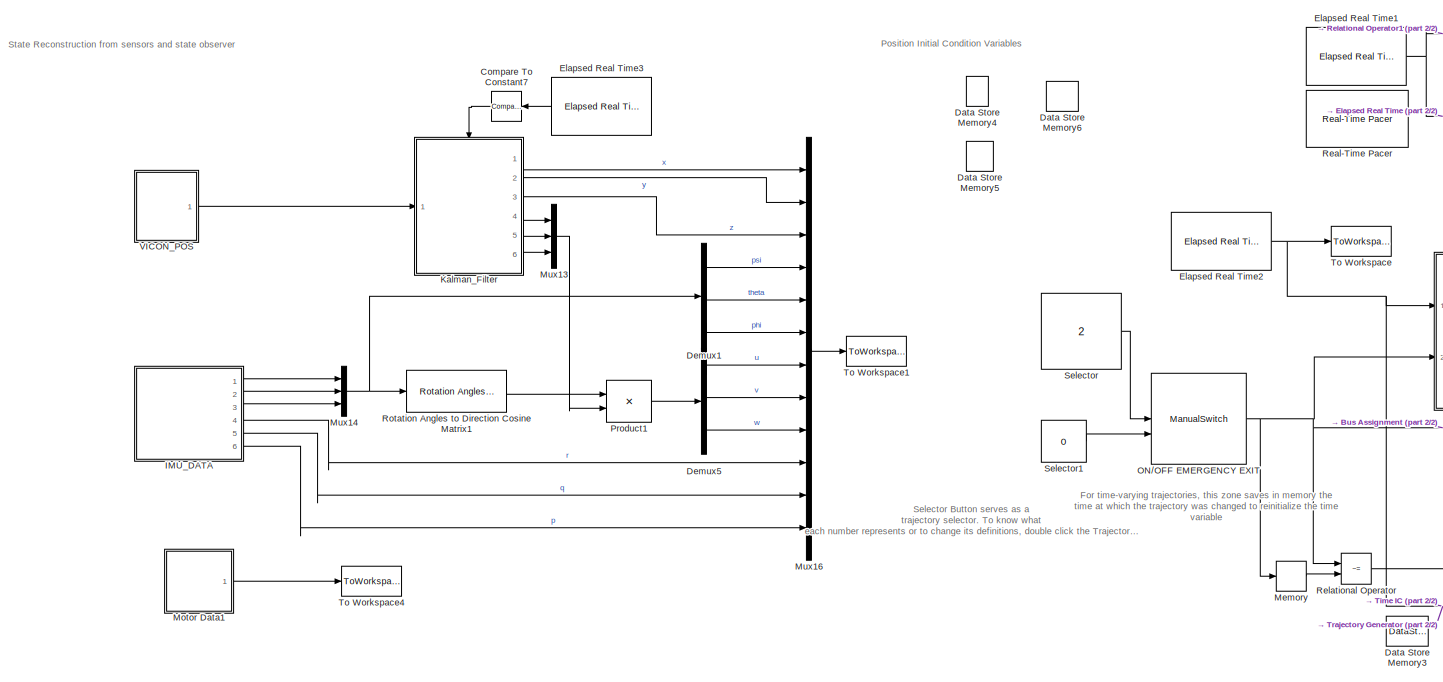
[diagram: root canvas - part 1/2, center side, full height]
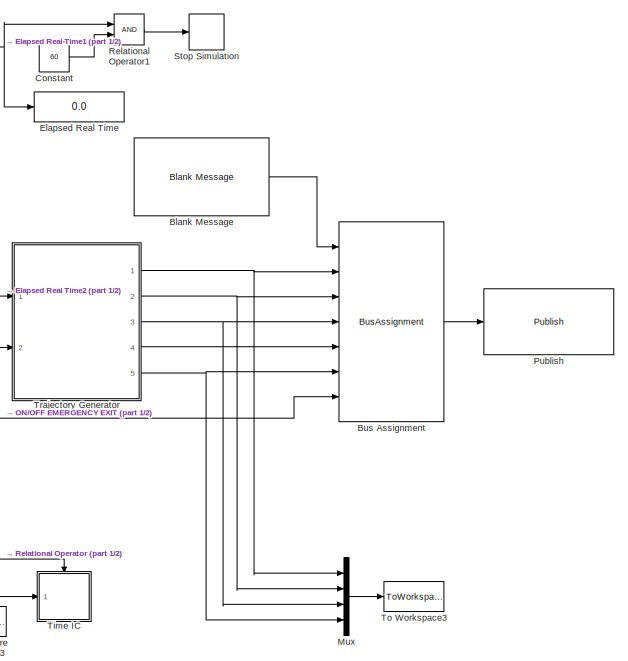
[diagram: root canvas - part 2/2, right side, full height]
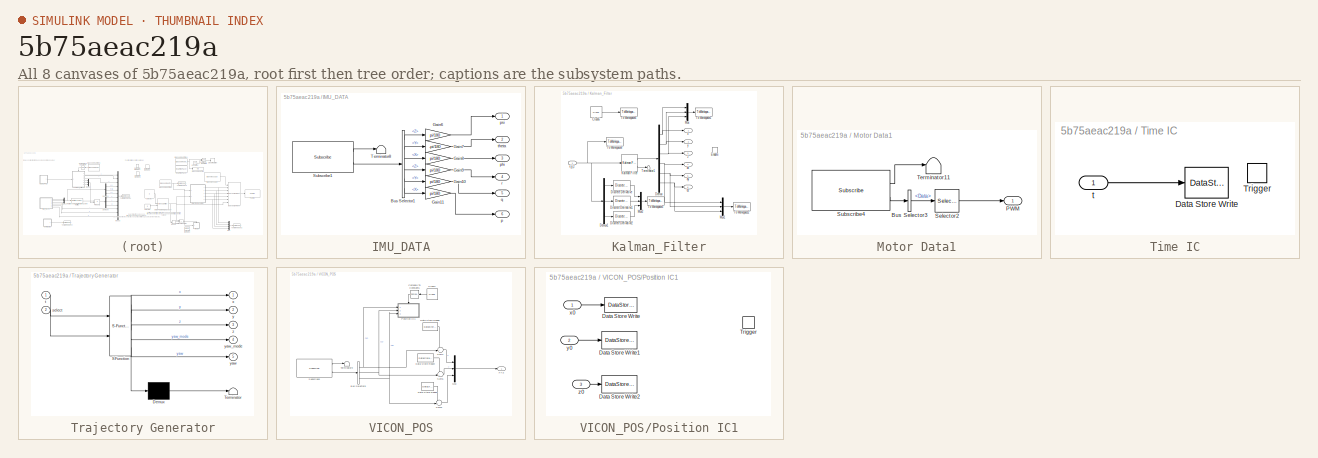
[diagram: thumbnail index - all 8 canvases of the model, root first then tree order]
MODEL slx_5b75aeac219a
KIND model
CONFIG AbsTol = auto
CONFIG FixedStep = Ts
CONFIG MaxStep = auto
CONFIG MinStep = auto
CONFIG RelTol = 1e-3
CONFIG SampleTimeConstraint = Unconstrained
CONFIG Solver = VariableStepAuto
CONFIG SolverMode = Auto
CONFIG SolverName = VariableStepAuto
CONFIG StartTime = 0.0
CONFIG StopTime = 60+1
BLOCK [Reference] Blank Message  REF=robotlib/Blank Message
  Ports = [0, 1]
  SourceBlock = robotlib/Blank Message
  SourceLibraryInfo = This block requires Robotics System Toolbox
  SourceType = ROS Blank Message
BLOCK [BusAssignment] Bus Assignment
  AssignedSignals = Linear.X,Linear.Y,Linear.Z,Angular.Y,Angular.Z,Angular.X
  Ports = [7, 1]
BLOCK [Reference] Compare To Constant7  REF=simulink/Logic and Bit
Operations/Compare
To Constant
  Ports = [1, 1]
  SourceBlock = simulink/Logic and Bit\nOperations/Compare\nTo Constant
  SourceType = Compare To Constant
BLOCK [Constant] Constant
  Value = 60
BLOCK [DataStoreMemory] Data Store Memory3
  DataStoreName = t0
  OutDataTypeStr = double
  ReadBeforeWriteMsg = warning
  SignalType = real
  WriteAfterReadMsg = warning
  WriteAfterWriteMsg = warning
BLOCK [DataStoreMemory] Data Store Memory4
  DataStoreName = x0
  OutDataTypeStr = double
  ReadBeforeWriteMsg = warning
  SignalType = real
  WriteAfterReadMsg = warning
  WriteAfterWriteMsg = warning
BLOCK [DataStoreMemory] Data Store Memory5
  DataStoreName = y0
  OutDataTypeStr = double
  ReadBeforeWriteMsg = warning
  SignalType = real
  WriteAfterReadMsg = warning
  WriteAfterWriteMsg = warning
BLOCK [DataStoreMemory] Data Store Memory6
  DataStoreName = z0
  OutDataTypeStr = double
  ReadBeforeWriteMsg = warning
  SignalType = real
  WriteAfterReadMsg = warning
  WriteAfterWriteMsg = warning
BLOCK [Demux] Demux1
  DisplayOption = bar
  Outputs = 3
  Ports = [1, 3]
BLOCK [Demux] Demux5
  DisplayOption = bar
  Outputs = 3
  Ports = [1, 3]
BLOCK [Display] Elapsed Real Time
  Decimation = 2
  Ports = [1]
BLOCK [Reference] Elapsed Real Time1  REF=realtime_pacer_lib/Elapsed Real Time
  Ports = [0, 1]
  SourceBlock = realtime_pacer_lib/Elapsed Real Time
  SourceType = RealTime_Elapsed
BLOCK [Reference] Elapsed Real Time2  REF=realtime_pacer_lib/Elapsed Real Time
  Ports = [0, 1]
  SourceBlock = realtime_pacer_lib/Elapsed Real Time
  SourceType = RealTime_Elapsed
BLOCK [Reference] Elapsed Real Time3  REF=realtime_pacer_lib/Elapsed Real Time
  Ports = [0, 1]
  SourceBlock = realtime_pacer_lib/Elapsed Real Time
  SourceType = RealTime_Elapsed
BLOCK [SubSystem] IMU_DATA
  Ports = [0, 6]
  RequestExecContextInheritance = off
  Variant = off
BLOCK [BusSelector] IMU_DATA/Bus Selector1
  OutputSignals = AngularVelocity.Z,AngularVelocity.Y,AngularVelocity.X,LinearAcceleration.Z,LinearAcceleration.Y,LinearAcceleration.X
  Ports = [1, 6]
BLOCK [Gain] IMU_DATA/Gain10
  Gain = pi/180
  OutDataTypeStr = Inherit: Inherit via internal rule
  ParamDataTypeStr = Inherit: Inherit via internal rule
  SaturateOnIntegerOverflow = off
BLOCK [Gain] IMU_DATA/Gain11
  Gain = pi/180
  OutDataTypeStr = Inherit: Inherit via internal rule
  ParamDataTypeStr = Inherit: Inherit via internal rule
  SaturateOnIntegerOverflow = off
BLOCK [Gain] IMU_DATA/Gain6
  Gain = pi/180
  OutDataTypeStr = Inherit: Inherit via internal rule
  ParamDataTypeStr = Inherit: Inherit via internal rule
  SaturateOnIntegerOverflow = off
BLOCK [Gain] IMU_DATA/Gain7
  Gain = -pi/180
  OutDataTypeStr = Inherit: Inherit via internal rule
  ParamDataTypeStr = Inherit: Inherit via internal rule
  SaturateOnIntegerOverflow = off
BLOCK [Gain] IMU_DATA/Gain8
  Gain = pi/180
  OutDataTypeStr = Inherit: Inherit via internal rule
  ParamDataTypeStr = Inherit: Inherit via internal rule
  SaturateOnIntegerOverflow = off
BLOCK [Gain] IMU_DATA/Gain9
  Gain = pi/180
  OutDataTypeStr = Inherit: Inherit via internal rule
  ParamDataTypeStr = Inherit: Inherit via internal rule
  SaturateOnIntegerOverflow = off
BLOCK [Reference] IMU_DATA/Subscribe1  REF=robotlib/Subscribe
  Ports = [0, 2]
  SourceBlock = robotlib/Subscribe
  SourceLibraryInfo = This block requires Robotics System Toolbox
  SourceType = ROS Subscribe
BLOCK [Terminator] IMU_DATA/Terminator8
BLOCK [Outport] IMU_DATA/p
  IconDisplay = Port number
  Port = 6
BLOCK [Outport] IMU_DATA/phi
  IconDisplay = Port number
  Port = 3
BLOCK [Outport] IMU_DATA/psi
  IconDisplay = Port number
BLOCK [Outport] IMU_DATA/q
  IconDisplay = Port number
  Port = 5
BLOCK [Outport] IMU_DATA/r
  IconDisplay = Port number
  Port = 4
BLOCK [Outport] IMU_DATA/theta
  IconDisplay = Port number
  Port = 2
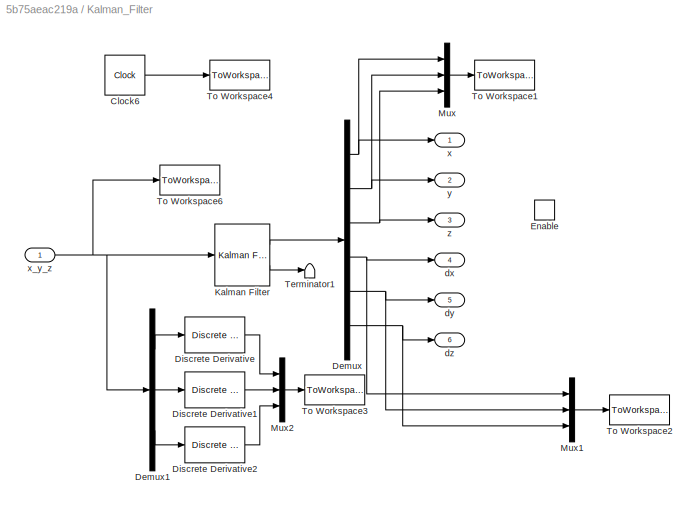
BLOCK [SubSystem] Kalman_Filter
  Ports = [1, 6, 1]
  RequestExecContextInheritance = off
  Variant = off
BLOCK [Clock] Kalman_Filter/Clock6
BLOCK [Demux] Kalman_Filter/Demux
  DisplayOption = bar
  Outputs = 6
  Ports = [1, 6]
BLOCK [Demux] Kalman_Filter/Demux1
  DisplayOption = bar
  Outputs = 3
  Ports = [1, 3]
BLOCK [Reference] Kalman_Filter/Discrete Derivative  REF=simulink/Discrete/Discrete Derivative
  Ports = [1, 1]
  SourceBlock = simulink/Discrete/Discrete Derivative
  SourceType = Discrete Derivative
BLOCK [Reference] Kalman_Filter/Discrete Derivative1  REF=simulink/Discrete/Discrete Derivative
  Ports = [1, 1]
  SourceBlock = simulink/Discrete/Discrete Derivative
  SourceType = Discrete Derivative
BLOCK [Reference] Kalman_Filter/Discrete Derivative2  REF=simulink/Discrete/Discrete Derivative
  Ports = [1, 1]
  SourceBlock = simulink/Discrete/Discrete Derivative
  SourceType = Discrete Derivative
BLOCK [EnablePort] Kalman_Filter/Enable
  Ports = []
BLOCK [Reference] Kalman_Filter/Kalman Filter  REF=ctrlSharedLib/Kalman Filter
  Ports = [1, 2]
  SourceBlock = ctrlSharedLib/Kalman Filter
  SourceType = ctrlKalmanFilter
BLOCK [Mux] Kalman_Filter/Mux
  DisplayOption = bar
  Inputs = 3
  Ports = [3, 1]
BLOCK [Mux] Kalman_Filter/Mux1
  DisplayOption = bar
  Inputs = 3
  Ports = [3, 1]
BLOCK [Mux] Kalman_Filter/Mux2
  DisplayOption = bar
  Inputs = 3
  Ports = [3, 1]
BLOCK [Terminator] Kalman_Filter/Terminator1
BLOCK [ToWorkspace] Kalman_Filter/To Workspace1
  FixptAsFi = on
  MaxDataPoints = inf
  Ports = [1]
  SampleTime = Ts
  Save2DSignal = 3-D array (concatenate along third dimension)
  VariableName = xyz_hat
BLOCK [ToWorkspace] Kalman_Filter/To Workspace2
  FixptAsFi = on
  MaxDataPoints = inf
  Ports = [1]
  SampleTime = Ts
  Save2DSignal = 3-D array (concatenate along third dimension)
  VariableName = dxyz_hat
BLOCK [ToWorkspace] Kalman_Filter/To Workspace3
  FixptAsFi = on
  MaxDataPoints = inf
  Ports = [1]
  SampleTime = Ts
  Save2DSignal = 3-D array (concatenate along third dimension)
  VariableName = dxyz
BLOCK [ToWorkspace] Kalman_Filter/To Workspace4
  FixptAsFi = on
  MaxDataPoints = inf
  Ports = [1]
  SampleTime = Ts
  Save2DSignal = 3-D array (concatenate along third dimension)
  VariableName = t_kal
BLOCK [ToWorkspace] Kalman_Filter/To Workspace6
  FixptAsFi = on
  MaxDataPoints = inf
  Ports = [1]
  SampleTime = Ts
  Save2DSignal = 3-D array (concatenate along third dimension)
  VariableName = xyz
BLOCK [Outport] Kalman_Filter/dx
  IconDisplay = Port number
  Port = 4
BLOCK [Outport] Kalman_Filter/dy
  IconDisplay = Port number
  Port = 5
BLOCK [Outport] Kalman_Filter/dz
  IconDisplay = Port number
  Port = 6
BLOCK [Outport] Kalman_Filter/x
  IconDisplay = Port number
BLOCK [Inport] Kalman_Filter/x_y_z
  IconDisplay = Port number
BLOCK [Outport] Kalman_Filter/y
  IconDisplay = Port number
  Port = 2
BLOCK [Outport] Kalman_Filter/z
  IconDisplay = Port number
  Port = 3
BLOCK [Memory] Memory
BLOCK [SubSystem] Motor Data1
  Ports = [0, 1]
  RequestExecContextInheritance = off
  Variant = off
BLOCK [BusSelector] Motor Data1/Bus Selector3
  Commented = on
  OutputSignals = Data
  Ports = [1, 1]
BLOCK [Outport] Motor Data1/PWM
  IconDisplay = Port number
BLOCK [Selector] Motor Data1/Selector2
  Commented = on
  IndexOptions = Index vector (dialog)
  Indices = [1 2 3 4]
  InputPortWidth = 128
  OutputSizes = 1
  Ports = [1, 1]
BLOCK [Reference] Motor Data1/Subscribe4  REF=robotlib/Subscribe
  Commented = on
  Ports = [0, 2]
  SourceBlock = robotlib/Subscribe
  SourceLibraryInfo = This block requires Robotics System Toolbox
  SourceType = ROS Subscribe
BLOCK [Terminator] Motor Data1/Terminator11
  Commented = on
BLOCK [Mux] Mux
  DisplayOption = bar
  Ports = [4, 1]
BLOCK [Mux] Mux13
  DisplayOption = bar
  Inputs = 3
  Ports = [3, 1]
BLOCK [Mux] Mux14
  DisplayOption = bar
  Inputs = 3
  Ports = [3, 1]
BLOCK [Mux] Mux16
  DisplayOption = bar
  Inputs = 12
  Ports = [12, 1]
BLOCK [ManualSwitch] ON//OFF EMERGENCY EXIT
  CurrentSetting = 0
BLOCK [Product] Product1
  InputSameDT = off
  Multiplication = Matrix(*)
  OutDataTypeStr = Inherit: Inherit via internal rule
  Ports = [2, 1]
  RndMeth = Floor
  SaturateOnIntegerOverflow = off
BLOCK [Reference] Publish  REF=robotlib/Publish
  Ports = [1]
  SourceBlock = robotlib/Publish
  SourceLibraryInfo = This block requires Robotics System Toolbox
  SourceType = ROS Publish
BLOCK [Reference] Real-Time Pacer  REF=realtime_pacer_lib/Real-Time Pacer
  Ports = []
  SourceBlock = realtime_pacer_lib/Real-Time Pacer
  SourceType = RealTime_Pacer
BLOCK [RelationalOperator] Relational Operator
  InputSameDT = off
  Operator = ~=
  OutDataTypeStr = boolean
  Ports = [2, 1]
BLOCK [RelationalOperator] Relational Operator1
  InputSameDT = off
  OutDataTypeStr = boolean
  Ports = [2, 1]
BLOCK [Reference] Rotation Angles to Direction Cosine Matrix1  REF=aerolibtransform2/Rotation Angles to
Direction Cosine Matrix
  AttributesFormatString = Rotation Order: %<rotationOrder>
  Ports = [1, 1]
  SourceBlock = aerolibtransform2/Rotation Angles to\nDirection Cosine Matrix
  SourceType = Ang2DCM
BLOCK [Constant] Selector
  Value = 2
BLOCK [Constant] Selector1
  Value = 0
BLOCK [Stop] Stop Simulation
BLOCK [SubSystem] Time IC
  Ports = [1, 0, 0, 1]
  RequestExecContextInheritance = off
  Variant = off
BLOCK [DataStoreWrite] Time IC/Data Store Write
  DataStoreName = t0
  Ports = [1]
BLOCK [TriggerPort] Time IC/Trigger
  PortDimensions = 1
  Ports = []
  StatesWhenEnabling = held
BLOCK [Inport] Time IC/t
  IconDisplay = Port number
BLOCK [ToWorkspace] To Workspace
  FixptAsFi = on
  MaxDataPoints = inf
  Ports = [1]
  SampleTime = Ts
  Save2DSignal = 3-D array (concatenate along third dimension)
  VariableName = t
BLOCK [ToWorkspace] To Workspace1
  FixptAsFi = on
  MaxDataPoints = inf
  Ports = [1]
  SampleTime = Ts
  Save2DSignal = 3-D array (concatenate along third dimension)
  VariableName = state
BLOCK [ToWorkspace] To Workspace3
  FixptAsFi = on
  MaxDataPoints = inf
  Ports = [1]
  SampleTime = Ts
  Save2DSignal = 3-D array (concatenate along third dimension)
  VariableName = traj
BLOCK [ToWorkspace] To Workspace4
  Commented = on
  FixptAsFi = on
  MaxDataPoints = inf
  Ports = [1]
  SampleTime = Ts
  Save2DSignal = 3-D array (concatenate along third dimension)
  VariableName = motors
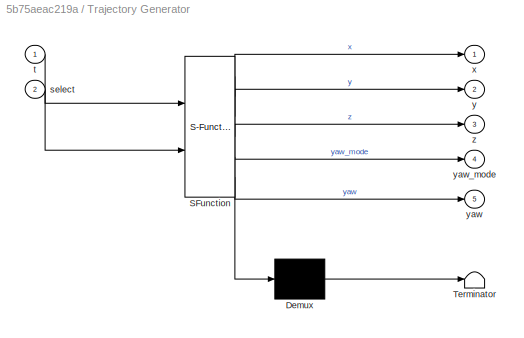
BLOCK [SubSystem] Trajectory Generator
  ErrorFcn = Stateflow.Translate.translate
  PermitHierarchicalResolution = ExplicitOnly
  Ports = [2, 5]
  RequestExecContextInheritance = off
  SFBlockType = MATLAB Function
  TreatAsAtomicUnit = on
  Variant = off
BLOCK [Demux] Trajectory Generator/ Demux 
  Outputs = 1
  Ports = [1, 1]
BLOCK [S-Function] Trajectory Generator/ SFunction 
  EnableBusSupport = on
  FunctionName = sf_sfun
  PortCounts = [2 6]
  Ports = [2, 6]
  SFunctionDeploymentMode = off
  Tag = Stateflow S-Function ROS_PID 4
BLOCK [Terminator] Trajectory Generator/ Terminator 
BLOCK [Inport] Trajectory Generator/select
  IconDisplay = Port number
  Port = 2
BLOCK [Inport] Trajectory Generator/t
  IconDisplay = Port number
BLOCK [Outport] Trajectory Generator/x
  IconDisplay = Port number
BLOCK [Outport] Trajectory Generator/y
  IconDisplay = Port number
  Port = 2
BLOCK [Outport] Trajectory Generator/yaw
  IconDisplay = Port number
  Port = 5
BLOCK [Outport] Trajectory Generator/yaw_mode
  IconDisplay = Port number
  Port = 4
BLOCK [Outport] Trajectory Generator/z
  IconDisplay = Port number
  Port = 3
BLOCK [SubSystem] VICON_POS
  Ports = [0, 1]
  RequestExecContextInheritance = off
  Variant = off
BLOCK [BusSelector] VICON_POS/Bus Selector5
  OutputSignals = X,Y,Z
  Ports = [1, 3]
BLOCK [Clock] VICON_POS/Clock7
BLOCK [Reference] VICON_POS/Compare To Constant5  REF=simulink/Logic and Bit
Operations/Compare
To Constant
  Ports = [1, 1]
  SourceBlock = simulink/Logic and Bit\nOperations/Compare\nTo Constant
  SourceType = Compare To Constant
BLOCK [DataStoreRead] VICON_POS/Data Store Read4
  DataStoreName = y0
  Ports = [0, 1]
  SampleTime = Ts
BLOCK [DataStoreRead] VICON_POS/Data Store Read5
  DataStoreName = x0
  Ports = [0, 1]
  SampleTime = Ts
BLOCK [DataStoreRead] VICON_POS/Data Store Read6
  DataStoreName = z0
  Ports = [0, 1]
  SampleTime = Ts
BLOCK [Mux] VICON_POS/Mux
  DisplayOption = bar
  Inputs = 3
  Ports = [3, 1]
BLOCK [SubSystem] VICON_POS/Position IC1
  Ports = [3, 0, 0, 1]
  RequestExecContextInheritance = off
  Variant = off
BLOCK [DataStoreWrite] VICON_POS/Position IC1/Data Store Write
  DataStoreName = x0
  Ports = [1]
BLOCK [DataStoreWrite] VICON_POS/Position IC1/Data Store Write1
  DataStoreName = y0
  Ports = [1]
BLOCK [DataStoreWrite] VICON_POS/Position IC1/Data Store Write2
  DataStoreName = z0
  Ports = [1]
BLOCK [TriggerPort] VICON_POS/Position IC1/Trigger
  PortDimensions = 1
  Ports = []
  StatesWhenEnabling = held
BLOCK [Inport] VICON_POS/Position IC1/x0
  IconDisplay = Port number
BLOCK [Inport] VICON_POS/Position IC1/y0
  IconDisplay = Port number
  Port = 2
BLOCK [Inport] VICON_POS/Position IC1/z0
  IconDisplay = Port number
  Port = 3
BLOCK [Reference] VICON_POS/Subscribe3  REF=robotlib/Subscribe
  Ports = [0, 2]
  SourceBlock = robotlib/Subscribe
  SourceLibraryInfo = This block requires Robotics System Toolbox
  SourceType = ROS Subscribe
BLOCK [Sum] VICON_POS/Sum4
  IconShape = round
  InputSameDT = off
  Inputs = -+|
  OutDataTypeStr = Inherit: Inherit via internal rule
  Ports = [2, 1]
  SaturateOnIntegerOverflow = off
BLOCK [Sum] VICON_POS/Sum5
  IconShape = round
  InputSameDT = off
  Inputs = -+|
  OutDataTypeStr = Inherit: Inherit via internal rule
  Ports = [2, 1]
  SaturateOnIntegerOverflow = off
BLOCK [Sum] VICON_POS/Sum6
  IconShape = round
  InputSameDT = off
  Inputs = -+|
  OutDataTypeStr = Inherit: Inherit via internal rule
  Ports = [2, 1]
  SaturateOnIntegerOverflow = off
BLOCK [Terminator] VICON_POS/Terminator9
BLOCK [Outport] VICON_POS/XYZ
  IconDisplay = Port number
ANNOTATION (root): Selector Button serves as a trajectory selector. To know what each number represents or to change its definitions, double click the Trajectory Generator Block.
ANNOTATION (root): For time-varying trajectories, this zone saves in memory the time at which the trajectory was changed to reinitialize the time variable
ANNOTATION (root): Position Initial Condition Variables
ANNOTATION (root): State Reconstruction from sensors and state observer
LINE Blank Message:1 -> Bus Assignment:1
LINE Bus Assignment:1 -> Publish:1
LINE Compare To Constant7:1 -> Kalman_Filter:enable
LINE Constant:1 -> Relational Operator1:2
LINE Demux1:1 -> Mux16:4
LINE Demux1:2 -> Mux16:5
LINE Demux1:3 -> Mux16:6
LINE Demux5:1 -> Mux16:7
LINE Demux5:2 -> Mux16:8
LINE Demux5:3 -> Mux16:9
NET Elapsed Real Time1:1 -> Elapsed Real Time:1, Relational Operator1:1
NET Elapsed Real Time2:1 -> Time IC:1, To Workspace:1, Trajectory Generator:1
LINE Elapsed Real Time3:1 -> Compare To Constant7:1
LINE IMU_DATA/Bus Selector1:1 -> IMU_DATA/Gain6:1
LINE IMU_DATA/Bus Selector1:2 -> IMU_DATA/Gain7:1
LINE IMU_DATA/Bus Selector1:3 -> IMU_DATA/Gain8:1
LINE IMU_DATA/Bus Selector1:4 -> IMU_DATA/Gain9:1
LINE IMU_DATA/Bus Selector1:5 -> IMU_DATA/Gain10:1
LINE IMU_DATA/Bus Selector1:6 -> IMU_DATA/Gain11:1
LINE IMU_DATA/Gain10:1 -> IMU_DATA/q:1
LINE IMU_DATA/Gain11:1 -> IMU_DATA/p:1
LINE IMU_DATA/Gain6:1 -> IMU_DATA/psi:1
LINE IMU_DATA/Gain7:1 -> IMU_DATA/theta:1
LINE IMU_DATA/Gain8:1 -> IMU_DATA/phi:1
LINE IMU_DATA/Gain9:1 -> IMU_DATA/r:1
LINE IMU_DATA/Subscribe1:1 -> IMU_DATA/Terminator8:1
LINE IMU_DATA/Subscribe1:2 -> IMU_DATA/Bus Selector1:1
LINE IMU_DATA:1 -> Mux14:1
LINE IMU_DATA:2 -> Mux14:2
LINE IMU_DATA:3 -> Mux14:3
LINE IMU_DATA:4 -> Mux16:10
LINE IMU_DATA:5 -> Mux16:11
LINE IMU_DATA:6 -> Mux16:12
LINE Kalman_Filter/Clock6:1 -> Kalman_Filter/To Workspace4:1
LINE Kalman_Filter/Demux1:1 -> Kalman_Filter/Discrete Derivative:1
LINE Kalman_Filter/Demux1:2 -> Kalman_Filter/Discrete Derivative1:1
LINE Kalman_Filter/Demux1:3 -> Kalman_Filter/Discrete Derivative2:1
NET Kalman_Filter/Demux:1 -> Kalman_Filter/Mux:1, Kalman_Filter/x:1
NET Kalman_Filter/Demux:2 -> Kalman_Filter/Mux:2, Kalman_Filter/y:1
NET Kalman_Filter/Demux:3 -> Kalman_Filter/Mux:3, Kalman_Filter/z:1
NET Kalman_Filter/Demux:4 -> Kalman_Filter/Mux1:1, Kalman_Filter/dx:1
NET Kalman_Filter/Demux:5 -> Kalman_Filter/Mux1:2, Kalman_Filter/dy:1
NET Kalman_Filter/Demux:6 -> Kalman_Filter/Mux1:3, Kalman_Filter/dz:1
LINE Kalman_Filter/Discrete Derivative1:1 -> Kalman_Filter/Mux2:2
LINE Kalman_Filter/Discrete Derivative2:1 -> Kalman_Filter/Mux2:3
LINE Kalman_Filter/Discrete Derivative:1 -> Kalman_Filter/Mux2:1
LINE Kalman_Filter/Kalman Filter:1 -> Kalman_Filter/Demux:1
LINE Kalman_Filter/Kalman Filter:2 -> Kalman_Filter/Terminator1:1
LINE Kalman_Filter/Mux1:1 -> Kalman_Filter/To Workspace2:1
LINE Kalman_Filter/Mux2:1 -> Kalman_Filter/To Workspace3:1
LINE Kalman_Filter/Mux:1 -> Kalman_Filter/To Workspace1:1
NET Kalman_Filter/x_y_z:1 -> Kalman_Filter/Demux1:1, Kalman_Filter/Kalman Filter:1, Kalman_Filter/To Workspace6:1
LINE Kalman_Filter:1 -> Mux16:1
LINE Kalman_Filter:2 -> Mux16:2
LINE Kalman_Filter:3 -> Mux16:3
LINE Kalman_Filter:4 -> Mux13:1
LINE Kalman_Filter:5 -> Mux13:2
LINE Kalman_Filter:6 -> Mux13:3
LINE Memory:1 -> Relational Operator:2
LINE Motor Data1/Bus Selector3:1 -> Motor Data1/Selector2:1
LINE Motor Data1/Selector2:1 -> Motor Data1/PWM:1
LINE Motor Data1/Subscribe4:1 -> Motor Data1/Terminator11:1
LINE Motor Data1/Subscribe4:2 -> Motor Data1/Bus Selector3:1
LINE Motor Data1:1 -> To Workspace4:1
LINE Mux13:1 -> Product1:2
NET Mux14:1 -> Demux1:1, Rotation Angles to Direction Cosine Matrix1:1
LINE Mux16:1 -> To Workspace1:1
LINE Mux:1 -> To Workspace3:1
NET ON//OFF EMERGENCY EXIT:1 -> Bus Assignment:7, Memory:1, Relational Operator:1, Trajectory Generator:2
LINE Product1:1 -> Demux5:1
LINE Relational Operator1:1 -> Stop Simulation:1
LINE Relational Operator:1 -> Time IC:trigger
LINE Rotation Angles to Direction Cosine Matrix1:1 -> Product1:1
LINE Selector1:1 -> ON//OFF EMERGENCY EXIT:2
LINE Selector:1 -> ON//OFF EMERGENCY EXIT:1
LINE Time IC/t:1 -> Time IC/Data Store Write:1
NET Trajectory Generator:1 -> Bus Assignment:2, Mux:1
NET Trajectory Generator:2 -> Bus Assignment:3, Mux:2
NET Trajectory Generator:3 -> Bus Assignment:4, Mux:3
LINE Trajectory Generator:4 -> Bus Assignment:5
NET Trajectory Generator:5 -> Bus Assignment:6, Mux:4
NET VICON_POS/Bus Selector5:1 -> VICON_POS/Position IC1:1, VICON_POS/Sum4:2
NET VICON_POS/Bus Selector5:2 -> VICON_POS/Position IC1:2, VICON_POS/Sum5:2
NET VICON_POS/Bus Selector5:3 -> VICON_POS/Position IC1:3, VICON_POS/Sum6:2
LINE VICON_POS/Clock7:1 -> VICON_POS/Compare To Constant5:1
LINE VICON_POS/Compare To Constant5:1 -> VICON_POS/Position IC1:trigger
LINE VICON_POS/Data Store Read4:1 -> VICON_POS/Sum5:1
LINE VICON_POS/Data Store Read5:1 -> VICON_POS/Sum4:1
LINE VICON_POS/Data Store Read6:1 -> VICON_POS/Sum6:1
LINE VICON_POS/Mux:1 -> VICON_POS/XYZ:1
LINE VICON_POS/Position IC1/x0:1 -> VICON_POS/Position IC1/Data Store Write:1
LINE VICON_POS/Position IC1/y0:1 -> VICON_POS/Position IC1/Data Store Write1:1
LINE VICON_POS/Position IC1/z0:1 -> VICON_POS/Position IC1/Data Store Write2:1
LINE VICON_POS/Subscribe3:1 -> VICON_POS/Terminator9:1
LINE VICON_POS/Subscribe3:2 -> VICON_POS/Bus Selector5:1
LINE VICON_POS/Sum4:1 -> VICON_POS/Mux:1
LINE VICON_POS/Sum5:1 -> VICON_POS/Mux:2
LINE VICON_POS/Sum6:1 -> VICON_POS/Mux:3
LINE VICON_POS:1 -> Kalman_Filter:1
note: NET lines group one-source signal fan-out (src -> all destinations, sorted); 1:1 wires keep LINE
CHART Trajectory Generator states=1 transitions=1
  STATE_LABEL 'eML_blk_kernel()'
  STATE_LABEL 'SCRIPT:\nfunction [x,y,z,yaw_mode,yaw] = message(t,select)\nx = 0;\ny= 0;\nz = 0;\nyaw_mode = 0; % 0 for Position mode, 1 for Rate mode\nyaw = 0; %If position mode, then this is the setpoint in deg\n         %If rate mode, then the setpoint is in deg/s\nglobal t0; \nswitch(select) \n    case 1 %PROTECTED case, left unchanged for landing\n        x= 0;\n        y= 0;\n        z= -0.1*(t-t0); %specify rate in cm...<+1973ch>'
